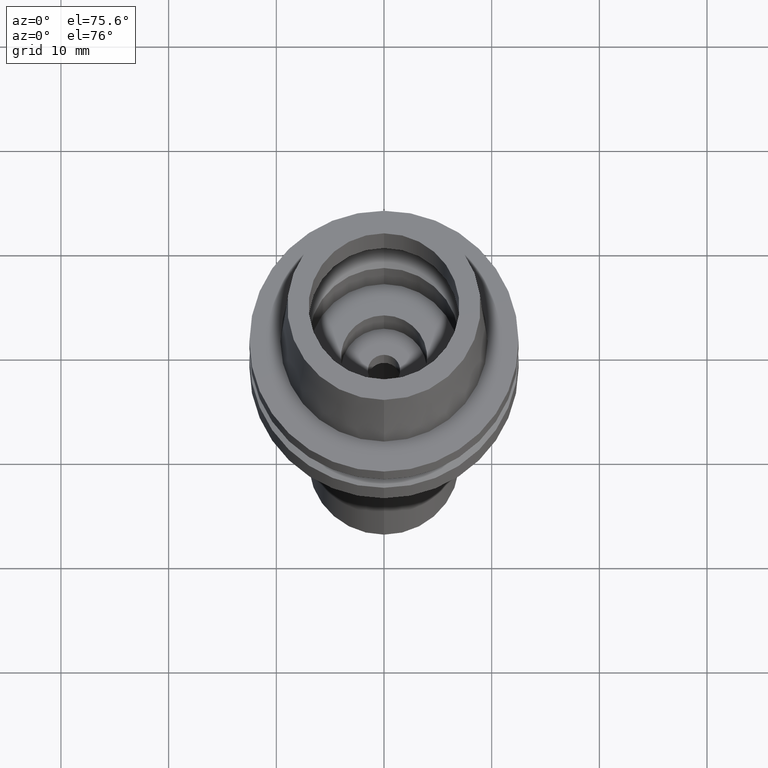
[diagram: clean part render]
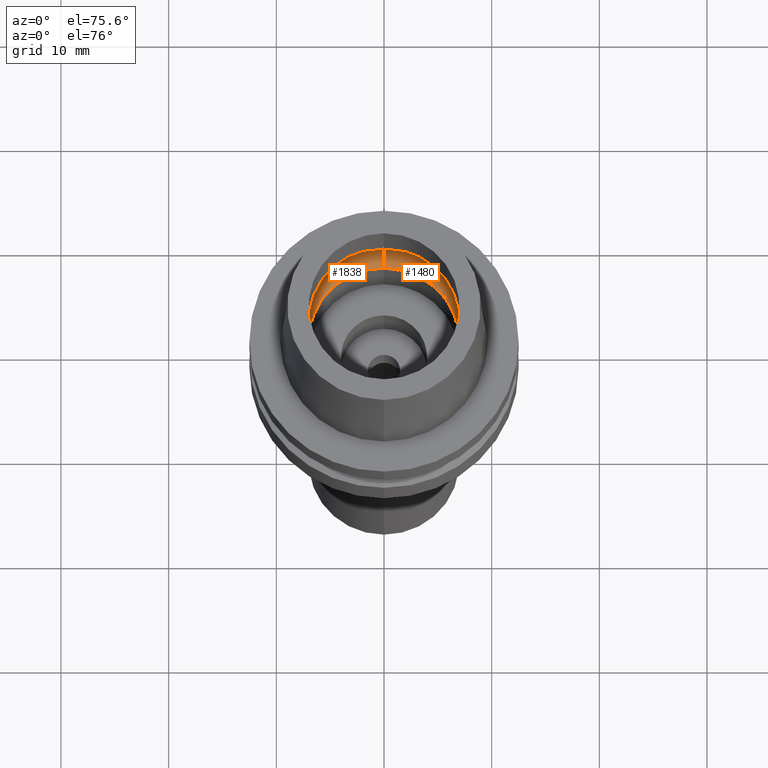
[diagram: same view with one multi-face feature highlighted, each face labeled with its STEP entity id]
A machine part, auxiliary view. The highlighted faces form ONE feature: a constant-radius fillet chain: 2 tangent blend faces with common blend radius 3 mm. The faces share edges in the B-rep.
Their STEP definitions:
[1] entity #1838 (Torus):
#10 = DIRECTION ( 'NONE',  ( 1.000000000000000000, 0.0000000000000000000, 0.0000000000000000000 ) ) ;
#47 = AXIS2_PLACEMENT_3D ( 'NONE', #731, #549, #1588 ) ;
#218 = AXIS2_PLACEMENT_3D ( 'NONE', #1751, #1393, #2028 ) ;
#241 = VERTEX_POINT ( 'NONE', #1504 ) ;
#248 = EDGE_CURVE ( 'NONE', #241, #620, #704, .T. ) ;
#360 = DIRECTION ( 'NONE',  ( 0.0000000000000000000, 1.000000000000000000, 0.0000000000000000000 ) ) ;
#430 = DIRECTION ( 'NONE',  ( -1.000000000000000000, 0.0000000000000000000, 0.0000000000000000000 ) ) ;
#532 = CARTESIAN_POINT ( 'NONE',  ( 0.0000000000000000000, 8.200000000000001066, 2.449999999999999734 ) ) ;
#549 = DIRECTION ( 'NONE',  ( 0.0000000000000000000, 0.0000000000000000000, 1.000000000000000000 ) ) ;
#581 = AXIS2_PLACEMENT_3D ( 'NONE', #1891, #10, #2303 ) ;
#613 = EDGE_LOOP ( 'NONE', ( #1469, #2593, #684, #1535 ) ) ;
#620 = VERTEX_POINT ( 'NONE', #1183 ) ;
#622 = CIRCLE ( 'NONE', #581, 3.000000000000000000 ) ;
#679 = CARTESIAN_POINT ( 'NONE',  ( 0.0000000000000000000, -5.200000000000000178, 2.449999999999999734 ) ) ;
#684 = ORIENTED_EDGE ( 'NONE', *, *, #795, .F. ) ;
#704 = CIRCLE ( 'NONE', #1021, 3.000000000000000000 ) ;
#731 = CARTESIAN_POINT ( 'NONE',  ( 0.0000000000000000000, 0.0000000000000000000, 2.449999999999999734 ) ) ;
#795 = EDGE_CURVE ( 'NONE', #2307, #241, #2292, .T. ) ;
#836 = DIRECTION ( 'NONE',  ( 0.0000000000000000000, 0.0000000000000000000, 1.000000000000000000 ) ) ;
#924 = TOROIDAL_SURFACE ( 'NONE', #47, 5.200000000000000178, 3.000000000000000000 ) ;
#1021 = AXIS2_PLACEMENT_3D ( 'NONE', #679, #430, #2510 ) ;
#1183 = CARTESIAN_POINT ( 'NONE',  ( 0.0000000000000000000, -8.200000000000001066, 2.449999999999999734 ) ) ;
#1290 = AXIS2_PLACEMENT_3D ( 'NONE', #1882, #836, #360 ) ;
#1291 = VERTEX_POINT ( 'NONE', #532 ) ;
#1373 = FACE_OUTER_BOUND ( 'NONE', #613, .T. ) ;
#1393 = DIRECTION ( 'NONE',  ( 0.0000000000000000000, 0.0000000000000000000, -1.000000000000000000 ) ) ;
#1469 = ORIENTED_EDGE ( 'NONE', *, *, #2211, .F. ) ;
#1504 = CARTESIAN_POINT ( 'NONE',  ( 0.0000000000000000000, -7.000000000000000000, 0.05000000000000000278 ) ) ;
#1535 = ORIENTED_EDGE ( 'NONE', *, *, #2595, .T. ) ;
#1588 = DIRECTION ( 'NONE',  ( 0.0000000000000000000, 1.000000000000000000, 0.0000000000000000000 ) ) ;
#1751 = CARTESIAN_POINT ( 'NONE',  ( 0.0000000000000000000, 0.0000000000000000000, 2.449999999999999734 ) ) ;
#1838 = ADVANCED_FACE ( 'NONE', ( #1373 ), #924, .F. ) ;
#1870 = CARTESIAN_POINT ( 'NONE',  ( 0.0000000000000000000, 7.000000000000000000, 0.05000000000000000278 ) ) ;
#1882 = CARTESIAN_POINT ( 'NONE',  ( 0.0000000000000000000, 0.0000000000000000000, 0.05000000000000000278 ) ) ;
#1891 = CARTESIAN_POINT ( 'NONE',  ( 0.0000000000000000000, 5.200000000000000178, 2.449999999999999734 ) ) ;
#2028 = DIRECTION ( 'NONE',  ( 0.0000000000000000000, -1.000000000000000000, 0.0000000000000000000 ) ) ;
#2211 = EDGE_CURVE ( 'NONE', #620, #1291, #2577, .T. ) ;
#2292 = CIRCLE ( 'NONE', #1290, 7.000000000000000000 ) ;
#2303 = DIRECTION ( 'NONE',  ( 0.0000000000000000000, 0.5999999999999998668, -0.8000000000000001554 ) ) ;
#2307 = VERTEX_POINT ( 'NONE', #1870 ) ;
#2510 = DIRECTION ( 'NONE',  ( 0.0000000000000000000, -0.5999999999999998668, -0.8000000000000001554 ) ) ;
#2577 = CIRCLE ( 'NONE', #218, 8.200000000000001066 ) ;
#2593 = ORIENTED_EDGE ( 'NONE', *, *, #248, .F. ) ;
#2595 = EDGE_CURVE ( 'NONE', #2307, #1291, #622, .T. ) ;
[2] entity #1480 (Torus):
#10 = DIRECTION ( 'NONE',  ( 1.000000000000000000, 0.0000000000000000000, 0.0000000000000000000 ) ) ;
#140 = DIRECTION ( 'NONE',  ( 0.0000000000000000000, 0.0000000000000000000, -1.000000000000000000 ) ) ;
#226 = CARTESIAN_POINT ( 'NONE',  ( 0.0000000000000000000, 0.0000000000000000000, 0.05000000000000000278 ) ) ;
#228 = CARTESIAN_POINT ( 'NONE',  ( 0.0000000000000000000, 0.0000000000000000000, 2.449999999999999734 ) ) ;
#241 = VERTEX_POINT ( 'NONE', #1504 ) ;
#248 = EDGE_CURVE ( 'NONE', #241, #620, #704, .T. ) ;
#346 = EDGE_CURVE ( 'NONE', #241, #2307, #839, .T. ) ;
#361 = AXIS2_PLACEMENT_3D ( 'NONE', #226, #2519, #651 ) ;
#430 = DIRECTION ( 'NONE',  ( -1.000000000000000000, 0.0000000000000000000, 0.0000000000000000000 ) ) ;
#532 = CARTESIAN_POINT ( 'NONE',  ( 0.0000000000000000000, 8.200000000000001066, 2.449999999999999734 ) ) ;
#581 = AXIS2_PLACEMENT_3D ( 'NONE', #1891, #10, #2303 ) ;
#584 = ORIENTED_EDGE ( 'NONE', *, *, #248, .T. ) ;
#620 = VERTEX_POINT ( 'NONE', #1183 ) ;
#622 = CIRCLE ( 'NONE', #581, 3.000000000000000000 ) ;
#651 = DIRECTION ( 'NONE',  ( 0.0000000000000000000, -1.000000000000000000, 0.0000000000000000000 ) ) ;
#679 = CARTESIAN_POINT ( 'NONE',  ( 0.0000000000000000000, -5.200000000000000178, 2.449999999999999734 ) ) ;
#704 = CIRCLE ( 'NONE', #1021, 3.000000000000000000 ) ;
#725 = EDGE_LOOP ( 'NONE', ( #2140, #584, #771, #1900 ) ) ;
#771 = ORIENTED_EDGE ( 'NONE', *, *, #2220, .F. ) ;
#839 = CIRCLE ( 'NONE', #361, 7.000000000000000000 ) ;
#1021 = AXIS2_PLACEMENT_3D ( 'NONE', #679, #430, #2510 ) ;
#1061 = DIRECTION ( 'NONE',  ( 0.0000000000000000000, 1.000000000000000000, 0.0000000000000000000 ) ) ;
#1082 = DIRECTION ( 'NONE',  ( 0.0000000000000000000, 0.0000000000000000000, 1.000000000000000000 ) ) ;
#1183 = CARTESIAN_POINT ( 'NONE',  ( 0.0000000000000000000, -8.200000000000001066, 2.449999999999999734 ) ) ;
#1285 = AXIS2_PLACEMENT_3D ( 'NONE', #1610, #140, #2242 ) ;
#1291 = VERTEX_POINT ( 'NONE', #532 ) ;
#1296 = TOROIDAL_SURFACE ( 'NONE', #2216, 5.200000000000000178, 3.000000000000000000 ) ;
#1480 = ADVANCED_FACE ( 'NONE', ( #1911 ), #1296, .F. ) ;
#1504 = CARTESIAN_POINT ( 'NONE',  ( 0.0000000000000000000, -7.000000000000000000, 0.05000000000000000278 ) ) ;
#1610 = CARTESIAN_POINT ( 'NONE',  ( 0.0000000000000000000, 0.0000000000000000000, 2.449999999999999734 ) ) ;
#1870 = CARTESIAN_POINT ( 'NONE',  ( 0.0000000000000000000, 7.000000000000000000, 0.05000000000000000278 ) ) ;
#1891 = CARTESIAN_POINT ( 'NONE',  ( 0.0000000000000000000, 5.200000000000000178, 2.449999999999999734 ) ) ;
#1900 = ORIENTED_EDGE ( 'NONE', *, *, #2595, .F. ) ;
#1911 = FACE_OUTER_BOUND ( 'NONE', #725, .T. ) ;
#2140 = ORIENTED_EDGE ( 'NONE', *, *, #346, .F. ) ;
#2216 = AXIS2_PLACEMENT_3D ( 'NONE', #228, #1082, #1061 ) ;
#2220 = EDGE_CURVE ( 'NONE', #1291, #620, #2328, .T. ) ;
#2242 = DIRECTION ( 'NONE',  ( 0.0000000000000000000, 1.000000000000000000, 0.0000000000000000000 ) ) ;
#2303 = DIRECTION ( 'NONE',  ( 0.0000000000000000000, 0.5999999999999998668, -0.8000000000000001554 ) ) ;
#2307 = VERTEX_POINT ( 'NONE', #1870 ) ;
#2328 = CIRCLE ( 'NONE', #1285, 8.200000000000001066 ) ;
#2510 = DIRECTION ( 'NONE',  ( 0.0000000000000000000, -0.5999999999999998668, -0.8000000000000001554 ) ) ;
#2519 = DIRECTION ( 'NONE',  ( 0.0000000000000000000, 0.0000000000000000000, 1.000000000000000000 ) ) ;
#2595 = EDGE_CURVE ( 'NONE', #2307, #1291, #622, .T. ) ;